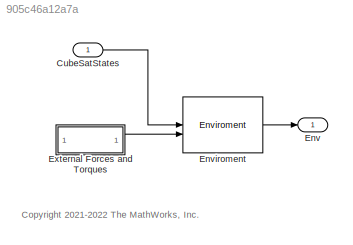
MODEL slx_905c46a12a7a
KIND model
BLOCK [Inport] CubeSatStates
  OutDataTypeStr = Bus: StatesOutBus
BLOCK [Outport] Env
  OutDataTypeStr = Bus: EnvBus
BLOCK [Reference] Enviroment  REF=asbCubeSatEnvironmentLib/Enviroment
  SourceBlock = asbCubeSatEnvironmentLib/Enviroment
  SourceType = SubSystem
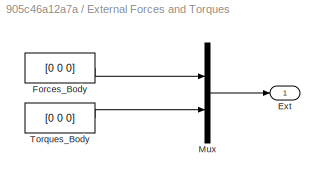
BLOCK [SubSystem] External Forces and Torques 
  NameLocation = top
BLOCK [Outport] External Forces and Torques /Ext
  VectorParamsAs1DForOutWhenUnconnected = off
BLOCK [Constant] External Forces and Torques /Forces_Body
  SampleTime = CubeSatTimeStep
  Value = [0 0 0]
BLOCK [Mux] External Forces and Torques /Mux
  DisplayOption = bar
  Inputs = 2
BLOCK [Constant] External Forces and Torques /Torques_Body
  SampleTime = CubeSatTimeStep
  Value = [0 0 0]
ANNOTATION (root): <copyright redacted>
LINE CubeSatStates:1 -> Enviroment:1
LINE Enviroment:1 -> Env:1
LINE External Forces and Torques /Forces_Body:1 -> External Forces and Torques /Mux:1
LINE External Forces and Torques /Mux:1 -> External Forces and Torques /Ext:1
LINE External Forces and Torques /Torques_Body:1 -> External Forces and Torques /Mux:2
LINE External Forces and Torques :1 -> Enviroment:2
